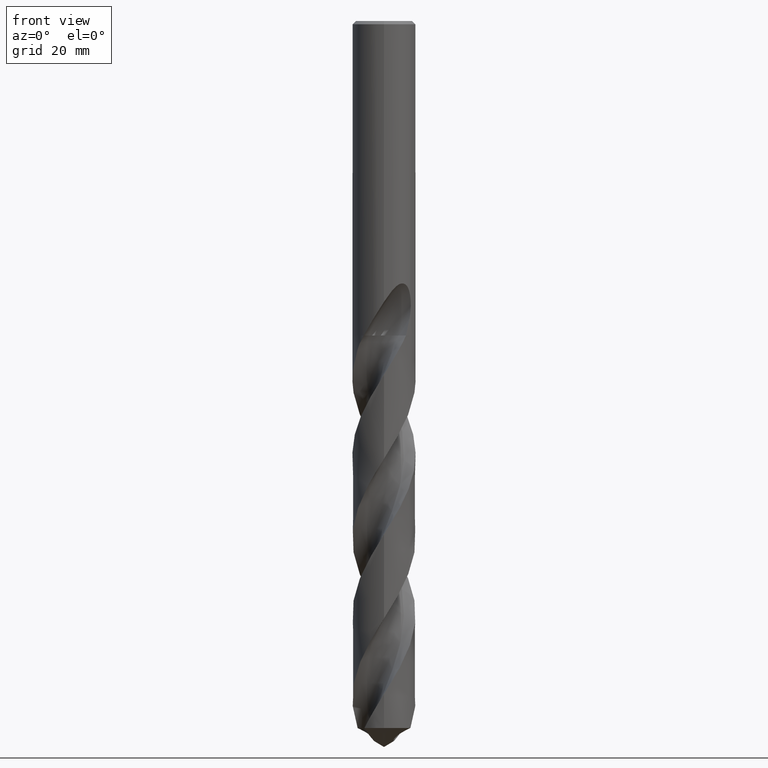
[diagram: clean part render]
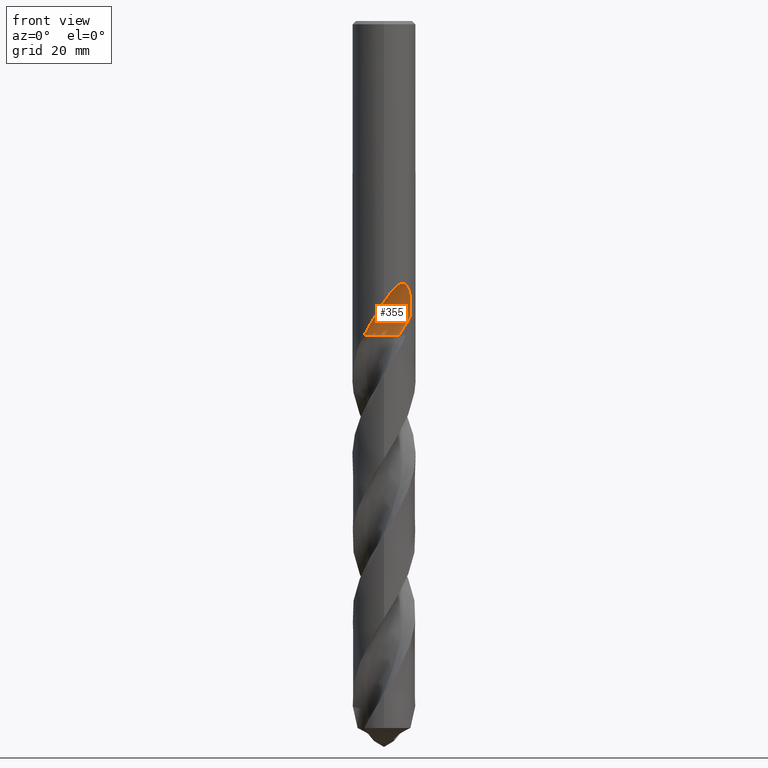
[diagram: same view with one face highlighted and labeled with its STEP entity id]
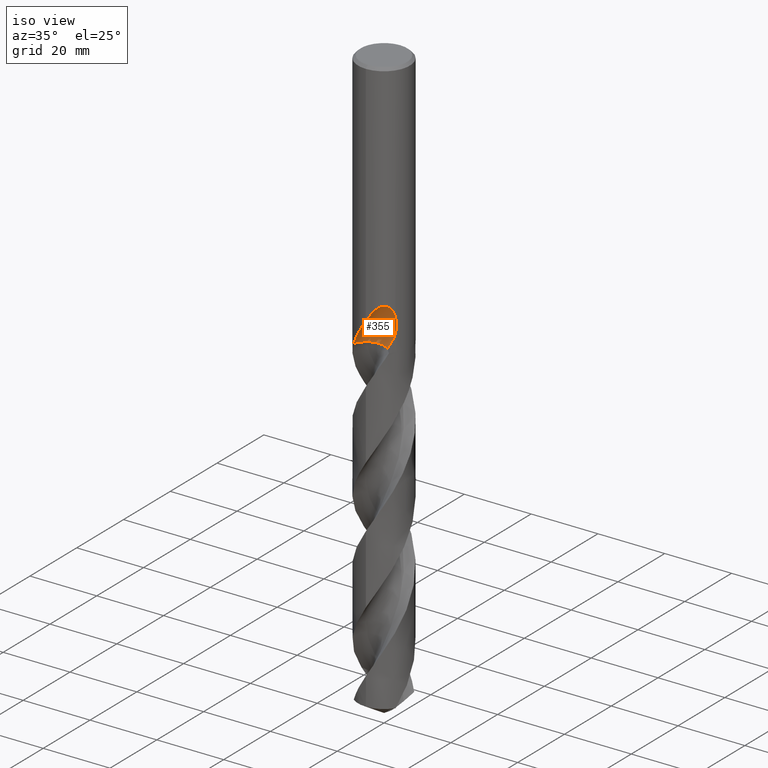
[diagram: same view with one face highlighted and labeled with its STEP entity id]
A machine part, front view. The second image highlights one B-rep face of the part: STEP entity #355.
A second angle (iso view) of the same face is appended — the face is thin or edge-on in the first view.
In plain terms, the highlighted face is a SurfaceOfRevolution surface.
Its self-contained STEP definition (entity closure, byte-faithful):
#285=VERTEX_POINT('',#763);
#355=ADVANCED_FACE('',(#841),#842,.F.);
#421=VERTEX_POINT('',#913);
#479=EDGE_CURVE('',#575,#639,#975,.T.);
#543=EDGE_CURVE('',#421,#639,#1047,.T.);
#573=EDGE_CURVE('',#421,#285,#1079,.T.);
#575=VERTEX_POINT('',#1081);
#639=VERTEX_POINT('',#1149);
#667=EDGE_CURVE('',#285,#575,#1179,.T.);
#763=CARTESIAN_POINT('',(-4.9360343968483,-5.97478572277956,-77.1));
#841=FACE_OUTER_BOUND('',#3149,.T.);
#842=SURFACE_OF_REVOLUTION('',#3150,#3151);
#913=CARTESIAN_POINT('',(3.65651003841681,-3.83862173423944,-77.1));
#975=B_SPLINE_CURVE_WITH_KNOTS('',3,(#4017,#4018,#4019,#4020,#4021,#4022,#4023,#4024,#4025,#4026,#4027,#4028,#4029,#4030,#4031,#4032,#4033,#4034,#4035,#4036,#4037,#4038,#4039,#4040,#4041,#4042,#4043,#4044,#4045,#4046),.UNSPECIFIED.,.F.,.F.,(4,2,2,2,2,2,2,2,2,2,2,2,2,2,4),(0.0,3.79341741066165,5.86636861631742,7.74448433522648,9.92672160655248,12.5478179394837,14.8173181284795,15.8466209386018,16.5989605331833,17.3109232333642,18.2141345667049,19.5356069508284,21.4142088382493,22.6432377033713,23.9348526179729),.UNSPECIFIED.);
#1047=CIRCLE('',#5150,33.6757642419449);
#1079=B_SPLINE_CURVE_WITH_KNOTS('',3,(#5381,#5382,#5383,#5384,#5385,#5386,#5387,#5388,#5389,#5390,#5391,#5392,#5393,#5394,#5395,#5396),.UNSPECIFIED.,.F.,.F.,(4,2,2,2,2,2,2,4),(0.0,2.01858215788016,4.03705337659611,6.0553593132581,8.07351147063539,10.0915842028475,11.3043287817727,12.5170947224965),.UNSPECIFIED.);
#1081=CARTESIAN_POINT('',(2.36214095294474E-012,-7.75000000000001,-68.8669368238682));
#1149=CARTESIAN_POINT('',(6.30572676569287,-4.5055865274595,-72.8612532363583));
#1179=B_SPLINE_CURVE_WITH_KNOTS('',3,(#6474,#6475,#6476,#6477,#6478,#6479,#6480,#6481,#6482,#6483,#6484,#6485,#6486,#6487,#6488,#6489,#6490,#6491,#6492,#6493,#6494,#6495,#6496,#6497,#6498,#6499,#6500,#6501,#6502,#6503),.UNSPECIFIED.,.F.,.F.,(4,2,2,2,2,2,2,2,2,2,2,2,2,2,4),(0.0,3.79341741066165,5.86636861631742,7.74448433522648,9.92672160655248,12.5478179394837,14.8173181284795,15.8466209386018,16.5989605331833,17.3109232333642,18.2141345667049,19.5356069508284,21.4142088382493,22.6432377033713,23.9348526179729),.UNSPECIFIED.);
#3149=EDGE_LOOP('',(#7265,#7266,#7267,#7268));
#3150=(B_SPLINE_CURVE(3,(#7270,#7271,#7272,#7273,#7274,#7275,#7276,#7277,#7278),.UNSPECIFIED.,.F.,.F.)B_SPLINE_CURVE_WITH_KNOTS((4,1,3,1,4),(-2.85636815330581,-2.55358052356841,-2.25079289383101,-1.94800526409361,-1.64521763435621),.UNSPECIFIED.)RATIONAL_B_SPLINE_CURVE((1.09168034872199,1.03056011624066,0.969439883759336,1.03056011624066,1.09168034872199,1.03056011624066,0.969439883759336,1.03056011624066,1.09168034872199))BOUNDED_CURVE()REPRESENTATION_ITEM('')GEOMETRIC_REPRESENTATION_ITEM()CURVE());
#3151=AXIS1_PLACEMENT('',#7285,#7286);
#4017=CARTESIAN_POINT('',(-4.9360343968483,-5.97478572277956,-77.1));
#4018=CARTESIAN_POINT('',(-4.42500080060063,-6.3969731494192,-76.0232024014518));
#4019=CARTESIAN_POINT('',(-3.83762569201706,-6.77216687091447,-75.0190961513844));
#4020=CARTESIAN_POINT('',(-2.81342105883732,-7.2321897324755,-73.3414507403934));
#4021=CARTESIAN_POINT('',(-2.44468326100329,-7.36458387863629,-72.7508837996524));
#4022=CARTESIAN_POINT('',(-1.73077336241674,-7.56246862871783,-71.6075649225821));
#4023=CARTESIAN_POINT('',(-1.38877757208716,-7.63238096469337,-71.060124295281));
#4024=CARTESIAN_POINT('',(-0.648446639925862,-7.73325762960889,-69.8801736690771));
#4025=CARTESIAN_POINT('',(-0.243914434528969,-7.75690954493945,-69.2384096457298));
#4026=CARTESIAN_POINT('',(0.654409189889035,-7.73787130292647,-67.8655978504633));
#4027=CARTESIAN_POINT('',(1.18705183797596,-7.67933590781922,-67.0844541919966));
#4028=CARTESIAN_POINT('',(2.21373628683024,-7.44317633062944,-65.797198735977));
#4029=CARTESIAN_POINT('',(2.78136929747013,-7.26344685636065,-65.1695390881947));
#4030=CARTESIAN_POINT('',(3.64070632246107,-6.84809816915714,-64.5814917049129));
#4031=CARTESIAN_POINT('',(3.92530845356562,-6.69120997499438,-64.4360892886023));
#4032=CARTESIAN_POINT('',(4.4240053728037,-6.36817325832368,-64.3244127118395));
#4033=CARTESIAN_POINT('',(4.62855293486418,-6.22105729107074,-64.3223452687737));
#4034=CARTESIAN_POINT('',(5.00953704245578,-5.9180284144636,-64.4201586225148));
#4035=CARTESIAN_POINT('',(5.17616178088516,-5.77167027936138,-64.5118539041457));
#4036=CARTESIAN_POINT('',(5.5152464400791,-5.45093390074709,-64.7987457798531));
#4037=CARTESIAN_POINT('',(5.67212285564356,-5.28471900839661,-65.0105622744841));
#4038=CARTESIAN_POINT('',(5.99345674620813,-4.92177689309499,-65.5905782078914));
#4039=CARTESIAN_POINT('',(6.1470454571283,-4.7241308057227,-66.0207798959626));
#4040=CARTESIAN_POINT('',(6.43584920088586,-4.32728144426491,-67.2244146317251));
#4041=CARTESIAN_POINT('',(6.54024875609753,-4.15825834430647,-68.0816206703479));
#4042=CARTESIAN_POINT('',(6.59187718237636,-4.07567648427862,-69.6679354413653));
#4043=CARTESIAN_POINT('',(6.57971294823715,-4.09584574141162,-70.2995809542235));
#4044=CARTESIAN_POINT('',(6.49387596937069,-4.23069547054599,-71.5815011472963));
#4045=CARTESIAN_POINT('',(6.41724695330065,-4.34951010375138,-72.226951168638));
#4046=CARTESIAN_POINT('',(6.30572676569288,-4.5055865274595,-72.8612532363583));
#5150=AXIS2_PLACEMENT_3D('',#7520,#7521,#7522);
#5381=CARTESIAN_POINT('',(3.65651003841681,-3.83862173423944,-77.1));
#5382=CARTESIAN_POINT('',(3.18075313942985,-3.36280988000048,-77.1));
#5383=CARTESIAN_POINT('',(2.61660743398041,-2.98447074840859,-77.1));
#5384=CARTESIAN_POINT('',(1.3750815629577,-2.46535839554282,-77.1));
#5385=CARTESIAN_POINT('',(0.709574915646506,-2.32953425362989,-77.1));
#5386=CARTESIAN_POINT('',(-0.635985343342236,-2.3206469805405,-77.1));
#5387=CARTESIAN_POINT('',(-1.3031730407835,-2.44764753504529,-77.1));
#5388=CARTESIAN_POINT('',(-2.55125981594653,-2.95024042953876,-77.1));
#5389=CARTESIAN_POINT('',(-3.1202300824155,-3.32100781205096,-77.1));
#5390=CARTESIAN_POINT('',(-4.0840000686943,-4.25976007169309,-77.1));
#5391=CARTESIAN_POINT('',(-4.46958856739384,-4.81875848273498,-77.1));
#5392=CARTESIAN_POINT('',(-4.89800407905655,-5.80681170181323,-77.1));
#5393=CARTESIAN_POINT('',(-5.01472988211416,-6.19529148907077,-77.1));
#5394=CARTESIAN_POINT('',(-5.15521662954249,-6.99149296574595,-77.1));
#5395=CARTESIAN_POINT('',(-5.1784914608951,-7.39646911719958,-77.1));
#5396=CARTESIAN_POINT('',(-5.15432208233295,-7.8,-77.1));
#6474=CARTESIAN_POINT('',(-4.9360343968483,-5.97478572277956,-77.1));
#6475=CARTESIAN_POINT('',(-4.42500080060063,-6.3969731494192,-76.0232024014518));
#6476=CARTESIAN_POINT('',(-3.83762569201706,-6.77216687091447,-75.0190961513844));
#6477=CARTESIAN_POINT('',(-2.81342105883732,-7.2321897324755,-73.3414507403934));
#6478=CARTESIAN_POINT('',(-2.44468326100329,-7.36458387863629,-72.7508837996524));
#6479=CARTESIAN_POINT('',(-1.73077336241674,-7.56246862871783,-71.6075649225821));
#6480=CARTESIAN_POINT('',(-1.38877757208716,-7.63238096469337,-71.060124295281));
#6481=CARTESIAN_POINT('',(-0.648446639925862,-7.73325762960889,-69.8801736690771));
#6482=CARTESIAN_POINT('',(-0.243914434528969,-7.75690954493945,-69.2384096457298));
#6483=CARTESIAN_POINT('',(0.654409189889035,-7.73787130292647,-67.8655978504633));
#6484=CARTESIAN_POINT('',(1.18705183797596,-7.67933590781922,-67.0844541919966));
#6485=CARTESIAN_POINT('',(2.21373628683024,-7.44317633062944,-65.797198735977));
#6486=CARTESIAN_POINT('',(2.78136929747013,-7.26344685636065,-65.1695390881947));
#6487=CARTESIAN_POINT('',(3.64070632246107,-6.84809816915714,-64.5814917049129));
#6488=CARTESIAN_POINT('',(3.92530845356562,-6.69120997499438,-64.4360892886023));
#6489=CARTESIAN_POINT('',(4.4240053728037,-6.36817325832368,-64.3244127118395));
#6490=CARTESIAN_POINT('',(4.62855293486418,-6.22105729107074,-64.3223452687737));
#6491=CARTESIAN_POINT('',(5.00953704245578,-5.9180284144636,-64.4201586225148));
#6492=CARTESIAN_POINT('',(5.17616178088516,-5.77167027936138,-64.5118539041457));
#6493=CARTESIAN_POINT('',(5.5152464400791,-5.45093390074709,-64.7987457798531));
#6494=CARTESIAN_POINT('',(5.67212285564356,-5.28471900839661,-65.0105622744841));
#6495=CARTESIAN_POINT('',(5.99345674620813,-4.92177689309499,-65.5905782078914));
#6496=CARTESIAN_POINT('',(6.1470454571283,-4.7241308057227,-66.0207798959626));
#6497=CARTESIAN_POINT('',(6.43584920088586,-4.32728144426491,-67.2244146317251));
#6498=CARTESIAN_POINT('',(6.54024875609753,-4.15825834430647,-68.0816206703479));
#6499=CARTESIAN_POINT('',(6.59187718237636,-4.07567648427862,-69.6679354413653));
#6500=CARTESIAN_POINT('',(6.57971294823715,-4.09584574141162,-70.2995809542235));
#6501=CARTESIAN_POINT('',(6.49387596937069,-4.23069547054599,-71.5815011472963));
#6502=CARTESIAN_POINT('',(6.41724695330065,-4.34951010375138,-72.226951168638));
#6503=CARTESIAN_POINT('',(6.30572676569288,-4.5055865274595,-72.8612532363583));
#7265=ORIENTED_EDGE('',*,*,#573,.F.);
#7266=ORIENTED_EDGE('',*,*,#543,.T.);
#7267=ORIENTED_EDGE('',*,*,#479,.F.);
#7268=ORIENTED_EDGE('',*,*,#667,.F.);
#7270=CARTESIAN_POINT('',(3.65338503841681,-3.83828163158319,-77.105));
#7271=CARTESIAN_POINT('',(2.93779171111266,-3.12267939980237,-77.105));
#7272=CARTESIAN_POINT('',(1.07704253239942,-2.10587658434228,-77.105));
#7273=CARTESIAN_POINT('',(-1.03164307801198,-2.32885745359658,-77.105));
#7274=CARTESIAN_POINT('',(-1.96741025547893,-2.71421463049546,-77.105));
#7275=CARTESIAN_POINT('',(-2.90317743294587,-3.09957180739434,-77.105));
#7276=CARTESIAN_POINT('',(-4.5573791189521,-4.42618111447148,-77.105));
#7277=CARTESIAN_POINT('',(-5.16249425455952,-6.45844860283721,-77.105));
#7278=CARTESIAN_POINT('',(-5.16664592327181,-7.47044817193733,-77.105));
#7285=CARTESIAN_POINT('',(2.62715328605254,-37.45833335,-78.7469708037828));
#7286=DIRECTION('',(-0.847998304005088,0.0,0.52999894000318));
#7520=CARTESIAN_POINT('',(2.62715328605254,-37.45833335,-78.7469708037828));
#7521=DIRECTION('',(0.847998304005088,6.26549348762868E-018,-0.52999894000318));
#7522=DIRECTION('',(0.0535598121476669,0.994880693159152,0.085695699436267));